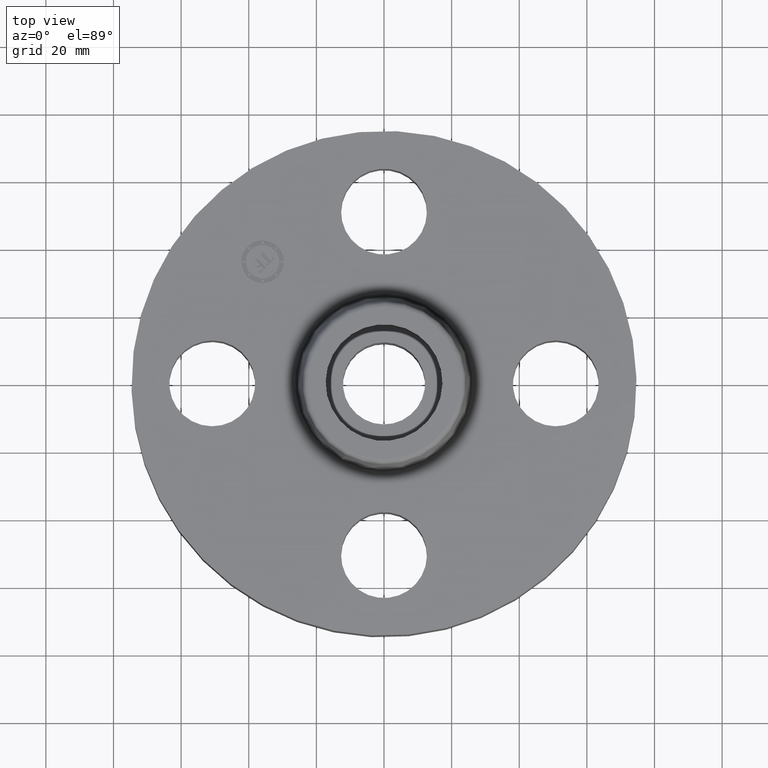
[diagram: clean part render]
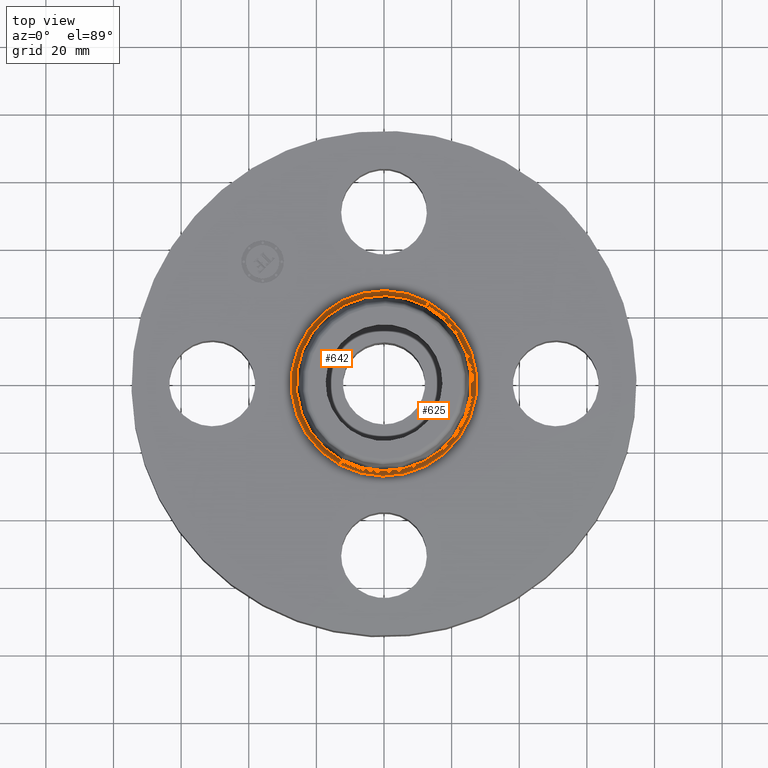
[diagram: same view with one multi-face feature highlighted, each face labeled with its STEP entity id]
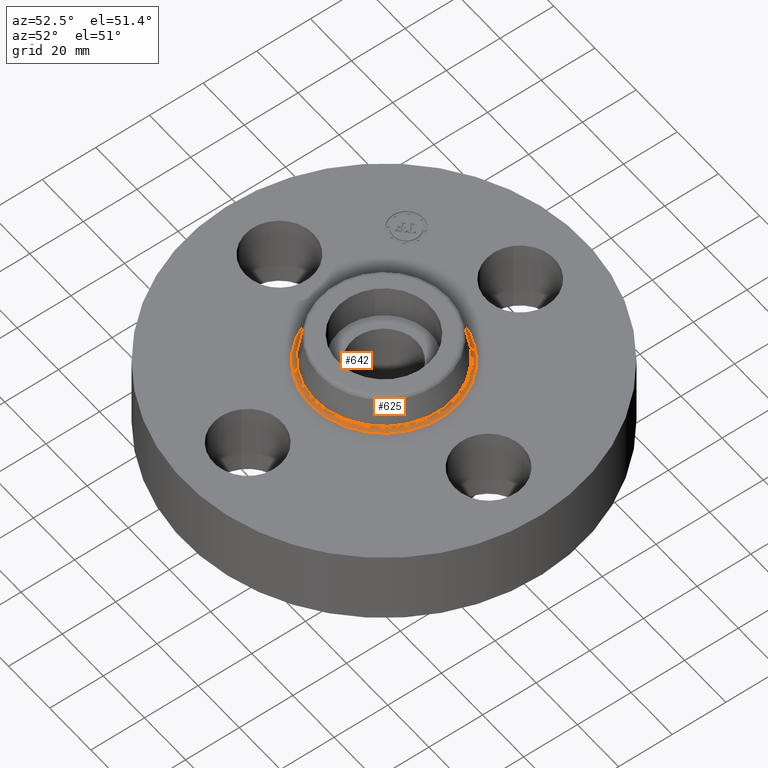
[diagram: same view with one multi-face feature highlighted, each face labeled with its STEP entity id]
A machine part, top view. The highlighted faces form ONE feature: a constant-radius fillet chain: 2 tangent blend faces with common blend radius 1.524 mm. The faces share edges in the B-rep.
A second angle (auxiliary view) of the same feature is appended — it is thin or edge-on in the first view.
Their STEP definitions:
[1] entity #642 (Torus):
#589=AXIS2_PLACEMENT_3D('Torus Axis2P3D',#586,#587,#588) ;
#602=AXIS2_PLACEMENT_3D('Circle Axis2P3D',#600,#601,$) ;
#616=AXIS2_PLACEMENT_3D('Circle Axis2P3D',#614,#615,$) ;
#628=AXIS2_PLACEMENT_3D('Circle Axis2P3D',#626,#627,$) ;
#633=AXIS2_PLACEMENT_3D('Circle Axis2P3D',#631,#632,$) ;
#586=CARTESIAN_POINT('Axis2P3D Location',(0.,0.,1.18)) ;
#595=CARTESIAN_POINT('Vertex',(0.517945452322,0.948092790991,1.12)) ;
#597=CARTESIAN_POINT('Vertex',(-0.517945452322,-0.948092790991,1.12)) ;
#600=CARTESIAN_POINT('Axis2P3D Location',(0.517945452322,0.948092790991,1.18)) ;
#604=CARTESIAN_POINT('Vertex',(0.489616933077,0.89623778434,1.16958110934)) ;
#611=CARTESIAN_POINT('Vertex',(-0.489616933077,-0.89623778434,1.16958110934)) ;
#614=CARTESIAN_POINT('Axis2P3D Location',(-0.517945452322,-0.948092790991,1.18)) ;
#626=CARTESIAN_POINT('Axis2P3D Location',(0.,0.,1.12)) ;
#631=CARTESIAN_POINT('Axis2P3D Location',(0.,0.,1.16958110934)) ;
#587=DIRECTION('Axis2P3D Direction',(0.,0.,-0.0393700787402)) ;
#588=DIRECTION('Axis2P3D XDirection',(-0.0188750212049,-0.0345504945626,0.)) ;
#601=DIRECTION('Axis2P3D Direction',(-0.0345504945626,0.0188750212049,0.)) ;
#615=DIRECTION('Axis2P3D Direction',(0.0345504945626,-0.0188750212049,0.)) ;
#627=DIRECTION('Axis2P3D Direction',(0.,0.,-0.0393700787402)) ;
#632=DIRECTION('Axis2P3D Direction',(0.,0.,-0.0393700787402)) ;
#637=ORIENTED_EDGE('',*,*,#630,.F.) ;
#638=ORIENTED_EDGE('',*,*,#618,.T.) ;
#639=ORIENTED_EDGE('',*,*,#635,.T.) ;
#640=ORIENTED_EDGE('',*,*,#606,.F.) ;
#642=ADVANCED_FACE('PartBody',(#641),#590,.F.) ;
#603=CIRCLE('generated circle',#602,0.0600000000002) ;
#617=CIRCLE('generated circle',#616,0.0600000000002) ;
#629=CIRCLE('generated circle',#628,1.08034597787) ;
#634=CIRCLE('generated circle',#633,1.02125751269) ;
#590=TOROIDAL_SURFACE('homeo Torus',#589,1.08034597787,0.0600000000002) ;
#606=EDGE_CURVE('',#596,#605,#603,.T.) ;
#618=EDGE_CURVE('',#598,#612,#617,.T.) ;
#630=EDGE_CURVE('',#598,#596,#629,.T.) ;
#635=EDGE_CURVE('',#612,#605,#634,.T.) ;
#636=EDGE_LOOP('',(#637,#638,#639,#640)) ;
#641=FACE_OUTER_BOUND('',#636,.T.) ;
#596=VERTEX_POINT('',#595) ;
#598=VERTEX_POINT('',#597) ;
#605=VERTEX_POINT('',#604) ;
#612=VERTEX_POINT('',#611) ;
[2] entity #625 (Torus):
#589=AXIS2_PLACEMENT_3D('Torus Axis2P3D',#586,#587,#588) ;
#593=AXIS2_PLACEMENT_3D('Circle Axis2P3D',#591,#592,$) ;
#602=AXIS2_PLACEMENT_3D('Circle Axis2P3D',#600,#601,$) ;
#609=AXIS2_PLACEMENT_3D('Circle Axis2P3D',#607,#608,$) ;
#616=AXIS2_PLACEMENT_3D('Circle Axis2P3D',#614,#615,$) ;
#586=CARTESIAN_POINT('Axis2P3D Location',(0.,0.,1.18)) ;
#591=CARTESIAN_POINT('Axis2P3D Location',(0.,0.,1.12)) ;
#595=CARTESIAN_POINT('Vertex',(0.517945452322,0.948092790991,1.12)) ;
#597=CARTESIAN_POINT('Vertex',(-0.517945452322,-0.948092790991,1.12)) ;
#600=CARTESIAN_POINT('Axis2P3D Location',(0.517945452322,0.948092790991,1.18)) ;
#604=CARTESIAN_POINT('Vertex',(0.489616933077,0.89623778434,1.16958110934)) ;
#607=CARTESIAN_POINT('Axis2P3D Location',(0.,0.,1.16958110934)) ;
#611=CARTESIAN_POINT('Vertex',(-0.489616933077,-0.89623778434,1.16958110934)) ;
#614=CARTESIAN_POINT('Axis2P3D Location',(-0.517945452322,-0.948092790991,1.18)) ;
#587=DIRECTION('Axis2P3D Direction',(0.,0.,-0.0393700787402)) ;
#588=DIRECTION('Axis2P3D XDirection',(-0.0188750212049,-0.0345504945626,0.)) ;
#592=DIRECTION('Axis2P3D Direction',(0.,0.,-0.0393700787402)) ;
#601=DIRECTION('Axis2P3D Direction',(-0.0345504945626,0.0188750212049,0.)) ;
#608=DIRECTION('Axis2P3D Direction',(0.,0.,-0.0393700787402)) ;
#615=DIRECTION('Axis2P3D Direction',(0.0345504945626,-0.0188750212049,0.)) ;
#620=ORIENTED_EDGE('',*,*,#599,.F.) ;
#621=ORIENTED_EDGE('',*,*,#606,.T.) ;
#622=ORIENTED_EDGE('',*,*,#613,.T.) ;
#623=ORIENTED_EDGE('',*,*,#618,.F.) ;
#625=ADVANCED_FACE('PartBody',(#624),#590,.F.) ;
#594=CIRCLE('generated circle',#593,1.08034597787) ;
#603=CIRCLE('generated circle',#602,0.0600000000002) ;
#610=CIRCLE('generated circle',#609,1.02125751269) ;
#617=CIRCLE('generated circle',#616,0.0600000000002) ;
#590=TOROIDAL_SURFACE('homeo Torus',#589,1.08034597787,0.0600000000002) ;
#599=EDGE_CURVE('',#596,#598,#594,.T.) ;
#606=EDGE_CURVE('',#596,#605,#603,.T.) ;
#613=EDGE_CURVE('',#605,#612,#610,.T.) ;
#618=EDGE_CURVE('',#598,#612,#617,.T.) ;
#619=EDGE_LOOP('',(#620,#621,#622,#623)) ;
#624=FACE_OUTER_BOUND('',#619,.T.) ;
#596=VERTEX_POINT('',#595) ;
#598=VERTEX_POINT('',#597) ;
#605=VERTEX_POINT('',#604) ;
#612=VERTEX_POINT('',#611) ;